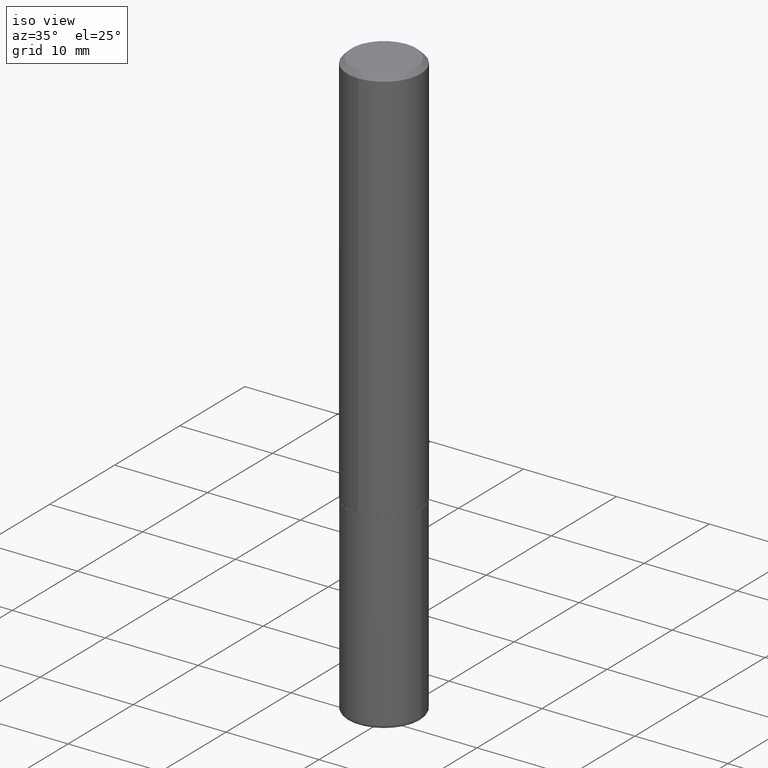
[diagram: clean part render]
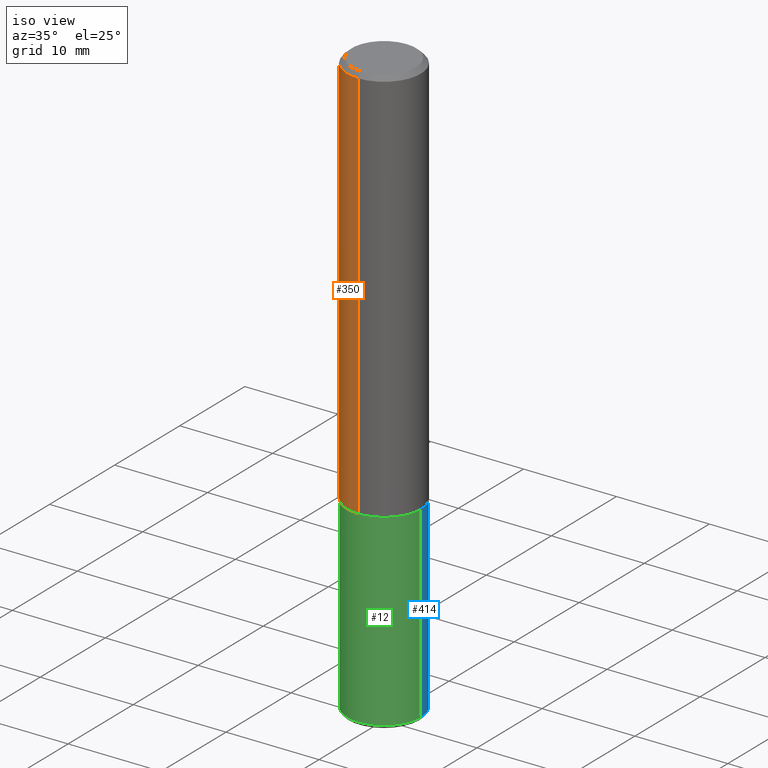
[diagram: same view with three faces highlighted in distinct colors, each labeled with its STEP entity id]
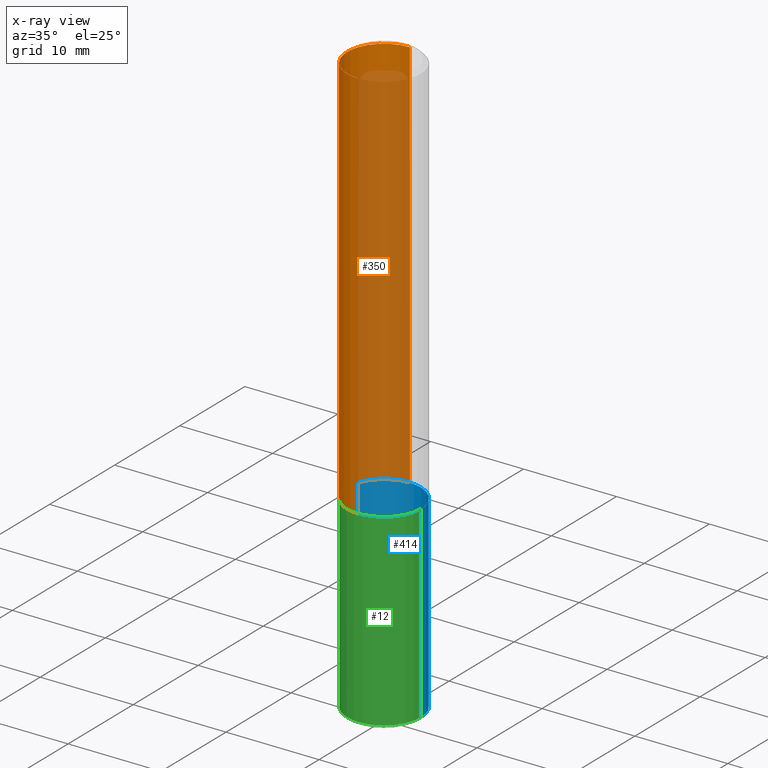
[diagram: x-ray of the same camera — body ghosted, the three highlighted faces saturated]
A machine part, iso view with three faces highlighted in distinct colors.
The next image is the same camera in x-ray (body ghosted, the three faces saturated) — at least one of them is partly hidden behind the body in this view.
Their STEP definitions:

[orange] entity #350 — the highlighted cylindrical surface (partial cylindrical patch) has radius 3.9688 mm, axis along (-0, 0, 1).
#8 = CARTESIAN_POINT ( 'NONE',  ( 1.091087918388479568E-15, 0.1562499999999999445, -0.02000000000000057981 ) ) ;
#13 = AXIS2_PLACEMENT_3D ( 'NONE', #96, #65, #216 ) ;
#42 = EDGE_CURVE ( 'NONE', #131, #202, #380, .T. ) ;
#43 = CARTESIAN_POINT ( 'NONE',  ( 1.110223024625178234E-15, 0.1562499999999943101, -1.687000000000000499 ) ) ;
#44 = EDGE_CURVE ( 'NONE', #202, #101, #106, .T. ) ;
#62 = LINE ( 'NONE', #119, #370 ) ;
#65 = DIRECTION ( 'NONE',  ( -2.445045230849958565E-29, 3.492087922831531704E-15, 1.000000000000000000 ) ) ;
#75 = AXIS2_PLACEMENT_3D ( 'NONE', #117, #375, #86 ) ;
#86 = DIRECTION ( 'NONE',  ( -6.982962677686265922E-15, -1.000000000000000000, 3.492087922831532098E-15 ) ) ;
#96 = CARTESIAN_POINT ( 'NONE',  ( 4.890090461699924977E-31, -6.984175845663074797E-17, -0.02000000000000003511 ) ) ;
#101 = VERTEX_POINT ( 'NONE', #320 ) ;
#104 = DIRECTION ( 'NONE',  ( -2.445045230849958565E-29, 3.492087922831531704E-15, 1.000000000000000000 ) ) ;
#106 = CIRCLE ( 'NONE', #13, 0.1562500000000000000 ) ;
#117 = CARTESIAN_POINT ( 'NONE',  ( 0.000000000000000000, 0.000000000000000000, 0.000000000000000000 ) ) ;
#119 = CARTESIAN_POINT ( 'NONE',  ( -1.091087918388479765E-15, -0.1562500000000001110, 5.456387379424272725E-16 ) ) ;
#130 = ORIENTED_EDGE ( 'NONE', *, *, #379, .T. ) ;
#131 = VERTEX_POINT ( 'NONE', #43 ) ;
#141 = DIRECTION ( 'NONE',  ( -6.982962677686265922E-15, -1.000000000000000000, 3.496765431890251792E-15 ) ) ;
#153 = AXIS2_PLACEMENT_3D ( 'NONE', #286, #104, #141 ) ;
#156 = CARTESIAN_POINT ( 'NONE',  ( -1.091087918388439336E-15, -0.1562500000000061062, -1.686999999999999611 ) ) ;
#202 = VERTEX_POINT ( 'NONE', #8 ) ;
#213 = CARTESIAN_POINT ( 'NONE',  ( 1.110223024625157132E-15, 0.1562500000000001110, -5.456387379424272725E-16 ) ) ;
#216 = DIRECTION ( 'NONE',  ( -6.982962677686265133E-15, -1.000000000000000000, 3.496765431890256920E-15 ) ) ;
#238 = DIRECTION ( 'NONE',  ( -2.445045230849958565E-29, 3.492087922831532098E-15, 1.000000000000000000 ) ) ;
#245 = VECTOR ( 'NONE', #388, 39.37007874015748143 ) ;
#261 = FACE_OUTER_BOUND ( 'NONE', #368, .T. ) ;
#263 = VERTEX_POINT ( 'NONE', #156 ) ;
#282 = ORIENTED_EDGE ( 'NONE', *, *, #42, .F. ) ;
#286 = CARTESIAN_POINT ( 'NONE',  ( 4.124791304443880664E-29, -5.891152325816794336E-15, -1.687000000000000055 ) ) ;
#296 = EDGE_CURVE ( 'NONE', #263, #101, #62, .T. ) ;
#320 = CARTESIAN_POINT ( 'NONE',  ( -1.071952812151801215E-15, -0.1562500000000000833, -0.01999999999999948694 ) ) ;
#350 = ADVANCED_FACE ( 'NONE', ( #261 ), #371, .T. ) ;
#361 = ORIENTED_EDGE ( 'NONE', *, *, #296, .T. ) ;
#365 = CIRCLE ( 'NONE', #153, 0.1562500000000002220 ) ;
#368 = EDGE_LOOP ( 'NONE', ( #282, #130, #361, #415 ) ) ;
#370 = VECTOR ( 'NONE', #238, 39.37007874015748143 ) ;
#371 = CYLINDRICAL_SURFACE ( 'NONE', #75, 0.1562500000000001110 ) ;
#375 = DIRECTION ( 'NONE',  ( -2.445045230849958565E-29, 3.492087922831531704E-15, 1.000000000000000000 ) ) ;
#379 = EDGE_CURVE ( 'NONE', #131, #263, #365, .T. ) ;
#380 = LINE ( 'NONE', #213, #245 ) ;
#388 = DIRECTION ( 'NONE',  ( -2.445045230849958565E-29, 3.492087922831532098E-15, 1.000000000000000000 ) ) ;
#415 = ORIENTED_EDGE ( 'NONE', *, *, #44, .F. ) ;

[blue] entity #414 — the highlighted cylindrical surface (partial cylindrical patch) has radius 3.9688 mm, axis along (-0, 0, 1).
#7 = VERTEX_POINT ( 'NONE', #363 ) ;
#19 = CYLINDRICAL_SURFACE ( 'NONE', #317, 0.1562500000000000000 ) ;
#23 = AXIS2_PLACEMENT_3D ( 'NONE', #129, #264, #194 ) ;
#34 = DIRECTION ( 'NONE',  ( -2.445468806185136597E-29, 3.491481338843145583E-15, 1.000000000000000000 ) ) ;
#38 = VECTOR ( 'NONE', #45, 39.37007874015748143 ) ;
#40 = FACE_OUTER_BOUND ( 'NONE', #334, .T. ) ;
#45 = DIRECTION ( 'NONE',  ( -2.445468806185136877E-29, 3.491481338843145188E-15, 1.000000000000000000 ) ) ;
#47 = ORIENTED_EDGE ( 'NONE', *, *, #289, .F. ) ;
#55 = LINE ( 'NONE', #397, #38 ) ;
#61 = AXIS2_PLACEMENT_3D ( 'NONE', #373, #34, #151 ) ;
#64 = VERTEX_POINT ( 'NONE', #174 ) ;
#84 = VERTEX_POINT ( 'NONE', #215 ) ;
#89 = VECTOR ( 'NONE', #112, 39.37007874015748143 ) ;
#102 = ORIENTED_EDGE ( 'NONE', *, *, #259, .T. ) ;
#112 = DIRECTION ( 'NONE',  ( -2.445468806185136877E-29, 3.491481338843145188E-15, 1.000000000000000000 ) ) ;
#116 = ORIENTED_EDGE ( 'NONE', *, *, #276, .F. ) ;
#128 = CIRCLE ( 'NONE', #61, 0.1562499999999999722 ) ;
#129 = CARTESIAN_POINT ( 'NONE',  ( 4.127951344840510809E-29, -5.893620499967230340E-15, -1.688000000000000167 ) ) ;
#139 = LINE ( 'NONE', #411, #89 ) ;
#151 = DIRECTION ( 'NONE',  ( 1.000000000000000000, -6.982962677686270655E-15, 0.000000000000000000 ) ) ;
#174 = CARTESIAN_POINT ( 'NONE',  ( 0.1562499999999999167, -9.767419045413696643E-15, -2.484999999999999876 ) ) ;
#190 = CARTESIAN_POINT ( 'NONE',  ( 0.1562500000000000000, -6.984708418355709513E-15, -1.688000000000000167 ) ) ;
#194 = DIRECTION ( 'NONE',  ( 1.000000000000000000, -6.982962677686269077E-15, 0.000000000000000000 ) ) ;
#215 = CARTESIAN_POINT ( 'NONE',  ( -0.1562500000000000000, -6.174752788871067364E-15, -1.688000000000000167 ) ) ;
#218 = CIRCLE ( 'NONE', #23, 0.1562500000000000000 ) ;
#258 = VERTEX_POINT ( 'NONE', #190 ) ;
#259 = EDGE_CURVE ( 'NONE', #7, #84, #55, .T. ) ;
#264 = DIRECTION ( 'NONE',  ( -2.445468806185136597E-29, 3.491481338843145583E-15, 1.000000000000000000 ) ) ;
#276 = EDGE_CURVE ( 'NONE', #258, #84, #218, .T. ) ;
#289 = EDGE_CURVE ( 'NONE', #64, #258, #139, .T. ) ;
#300 = EDGE_CURVE ( 'NONE', #64, #7, #128, .T. ) ;
#305 = DIRECTION ( 'NONE',  ( -2.445468806185136597E-29, 3.491481338843145583E-15, 1.000000000000000000 ) ) ;
#317 = AXIS2_PLACEMENT_3D ( 'NONE', #329, #305, #398 ) ;
#329 = CARTESIAN_POINT ( 'NONE',  ( 0.000000000000000000, 0.000000000000000000, 0.000000000000000000 ) ) ;
#334 = EDGE_LOOP ( 'NONE', ( #383, #102, #116, #47 ) ) ;
#363 = CARTESIAN_POINT ( 'NONE',  ( -0.1562499999999999167, -7.566108102400061717E-15, -2.484999999999999876 ) ) ;
#373 = CARTESIAN_POINT ( 'NONE',  ( 6.076989983370064174E-29, -8.676331127025216680E-15, -2.484999999999999876 ) ) ;
#383 = ORIENTED_EDGE ( 'NONE', *, *, #300, .T. ) ;
#397 = CARTESIAN_POINT ( 'NONE',  ( -0.1562500000000000000, 1.110223024625156540E-15, -7.685836078523291160E-30 ) ) ;
#398 = DIRECTION ( 'NONE',  ( 1.000000000000000000, -6.982962677686266711E-15, 4.876176775795936353E-29 ) ) ;
#411 = CARTESIAN_POINT ( 'NONE',  ( 0.1562500000000000000, -1.091087918388479174E-15, 7.619026212181150377E-30 ) ) ;
#414 = ADVANCED_FACE ( 'NONE', ( #40 ), #19, .T. ) ;

[green] entity #12 — the highlighted cylindrical surface (partial cylindrical patch) has radius 3.9688 mm, axis along (-0, 0, 1).
#5 = ORIENTED_EDGE ( 'NONE', *, *, #289, .T. ) ;
#7 = VERTEX_POINT ( 'NONE', #363 ) ;
#10 = DIRECTION ( 'NONE',  ( 1.000000000000000000, -6.982962677686266711E-15, 4.876176775795936353E-29 ) ) ;
#12 = ADVANCED_FACE ( 'NONE', ( #186 ), #325, .T. ) ;
#17 = EDGE_CURVE ( 'NONE', #7, #64, #292, .T. ) ;
#22 = AXIS2_PLACEMENT_3D ( 'NONE', #51, #150, #10 ) ;
#24 = CARTESIAN_POINT ( 'NONE',  ( 6.076989983370064174E-29, -8.676331127025216680E-15, -2.484999999999999876 ) ) ;
#38 = VECTOR ( 'NONE', #45, 39.37007874015748143 ) ;
#45 = DIRECTION ( 'NONE',  ( -2.445468806185136877E-29, 3.491481338843145188E-15, 1.000000000000000000 ) ) ;
#51 = CARTESIAN_POINT ( 'NONE',  ( 0.000000000000000000, 0.000000000000000000, 0.000000000000000000 ) ) ;
#55 = LINE ( 'NONE', #397, #38 ) ;
#57 = DIRECTION ( 'NONE',  ( -2.445468806185136597E-29, 3.491481338843145583E-15, 1.000000000000000000 ) ) ;
#64 = VERTEX_POINT ( 'NONE', #174 ) ;
#78 = DIRECTION ( 'NONE',  ( -2.445468806185136597E-29, 3.491481338843145583E-15, 1.000000000000000000 ) ) ;
#84 = VERTEX_POINT ( 'NONE', #215 ) ;
#89 = VECTOR ( 'NONE', #112, 39.37007874015748143 ) ;
#112 = DIRECTION ( 'NONE',  ( -2.445468806185136877E-29, 3.491481338843145188E-15, 1.000000000000000000 ) ) ;
#113 = ORIENTED_EDGE ( 'NONE', *, *, #17, .T. ) ;
#115 = DIRECTION ( 'NONE',  ( 1.000000000000000000, -6.982962677686270655E-15, 0.000000000000000000 ) ) ;
#139 = LINE ( 'NONE', #411, #89 ) ;
#150 = DIRECTION ( 'NONE',  ( -2.445468806185136597E-29, 3.491481338843145583E-15, 1.000000000000000000 ) ) ;
#157 = CIRCLE ( 'NONE', #210, 0.1562500000000000000 ) ;
#162 = AXIS2_PLACEMENT_3D ( 'NONE', #24, #57, #115 ) ;
#174 = CARTESIAN_POINT ( 'NONE',  ( 0.1562499999999999167, -9.767419045413696643E-15, -2.484999999999999876 ) ) ;
#186 = FACE_OUTER_BOUND ( 'NONE', #395, .T. ) ;
#190 = CARTESIAN_POINT ( 'NONE',  ( 0.1562500000000000000, -6.984708418355709513E-15, -1.688000000000000167 ) ) ;
#200 = EDGE_CURVE ( 'NONE', #84, #258, #157, .T. ) ;
#210 = AXIS2_PLACEMENT_3D ( 'NONE', #327, #78, #331 ) ;
#215 = CARTESIAN_POINT ( 'NONE',  ( -0.1562500000000000000, -6.174752788871067364E-15, -1.688000000000000167 ) ) ;
#222 = ORIENTED_EDGE ( 'NONE', *, *, #200, .F. ) ;
#258 = VERTEX_POINT ( 'NONE', #190 ) ;
#259 = EDGE_CURVE ( 'NONE', #7, #84, #55, .T. ) ;
#289 = EDGE_CURVE ( 'NONE', #64, #258, #139, .T. ) ;
#292 = CIRCLE ( 'NONE', #162, 0.1562499999999999722 ) ;
#325 = CYLINDRICAL_SURFACE ( 'NONE', #22, 0.1562500000000000000 ) ;
#327 = CARTESIAN_POINT ( 'NONE',  ( 4.127951344840510809E-29, -5.893620499967230340E-15, -1.688000000000000167 ) ) ;
#331 = DIRECTION ( 'NONE',  ( 1.000000000000000000, -6.982962677686269077E-15, 0.000000000000000000 ) ) ;
#363 = CARTESIAN_POINT ( 'NONE',  ( -0.1562499999999999167, -7.566108102400061717E-15, -2.484999999999999876 ) ) ;
#392 = ORIENTED_EDGE ( 'NONE', *, *, #259, .F. ) ;
#395 = EDGE_LOOP ( 'NONE', ( #392, #113, #5, #222 ) ) ;
#397 = CARTESIAN_POINT ( 'NONE',  ( -0.1562500000000000000, 1.110223024625156540E-15, -7.685836078523291160E-30 ) ) ;
#411 = CARTESIAN_POINT ( 'NONE',  ( 0.1562500000000000000, -1.091087918388479174E-15, 7.619026212181150377E-30 ) ) ;